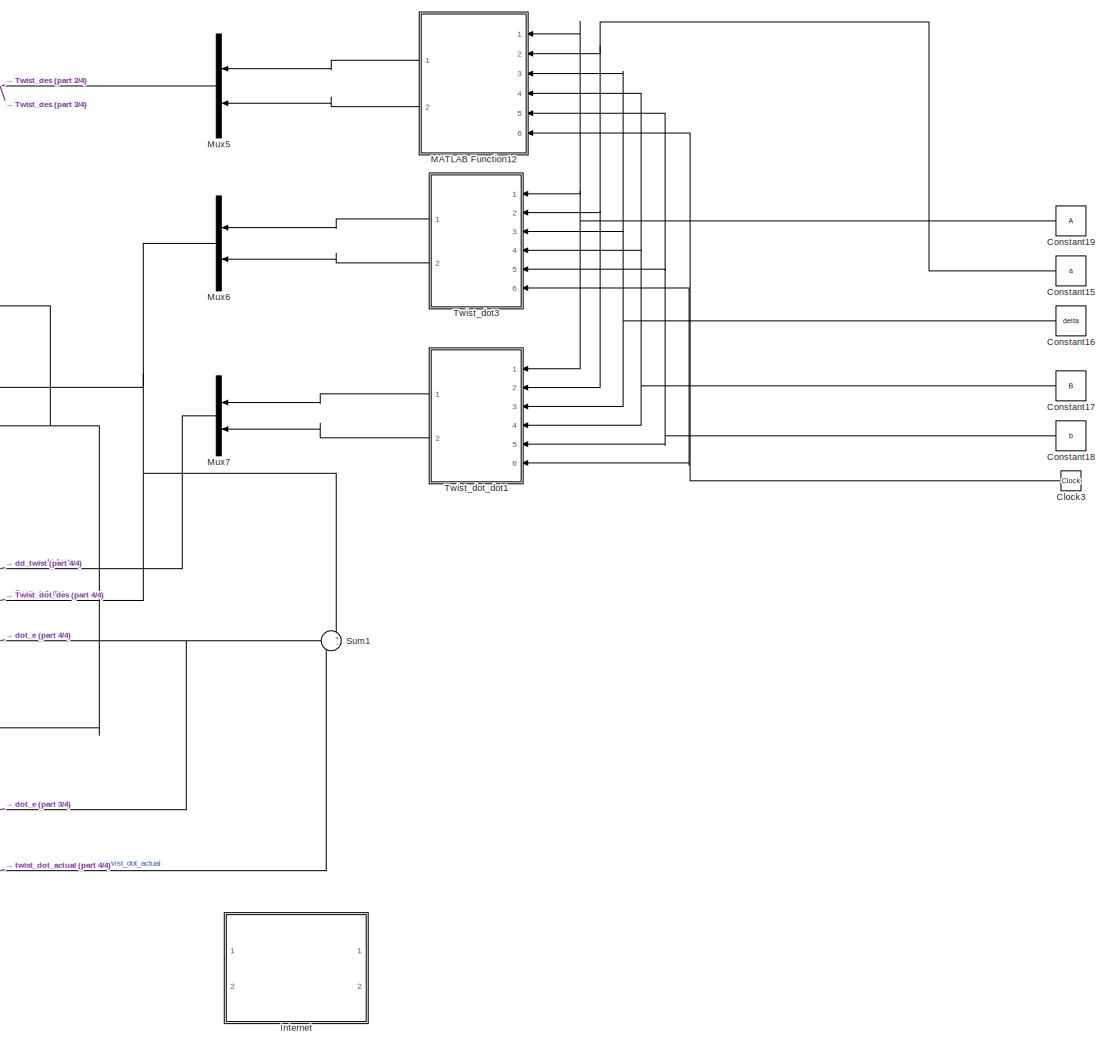
[diagram: root canvas - part 1/4, right side, full height]
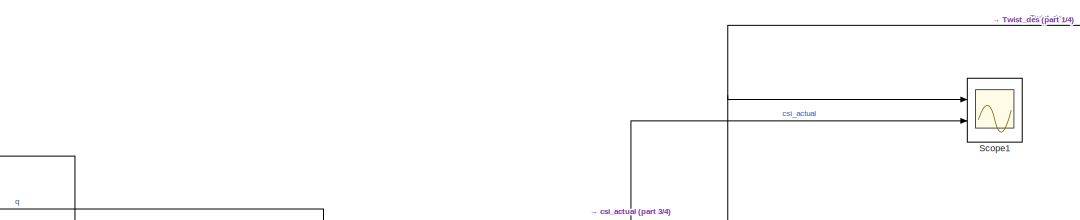
[diagram: root canvas - part 2/4, top center region]
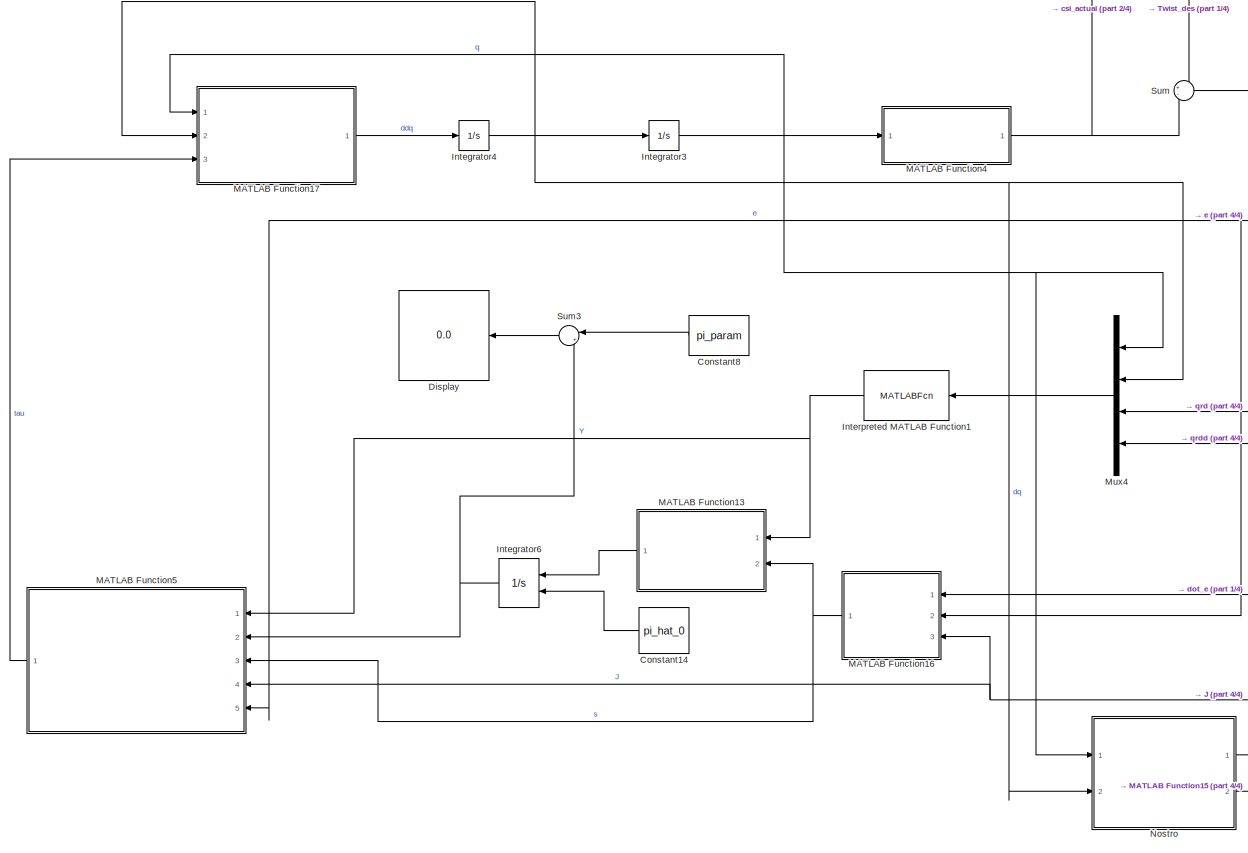
[diagram: root canvas - part 3/4, left side, full height]
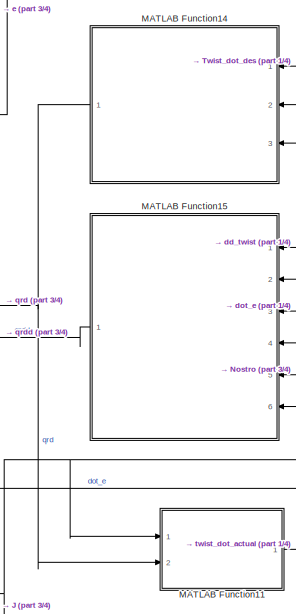
[diagram: root canvas - part 4/4, central region]
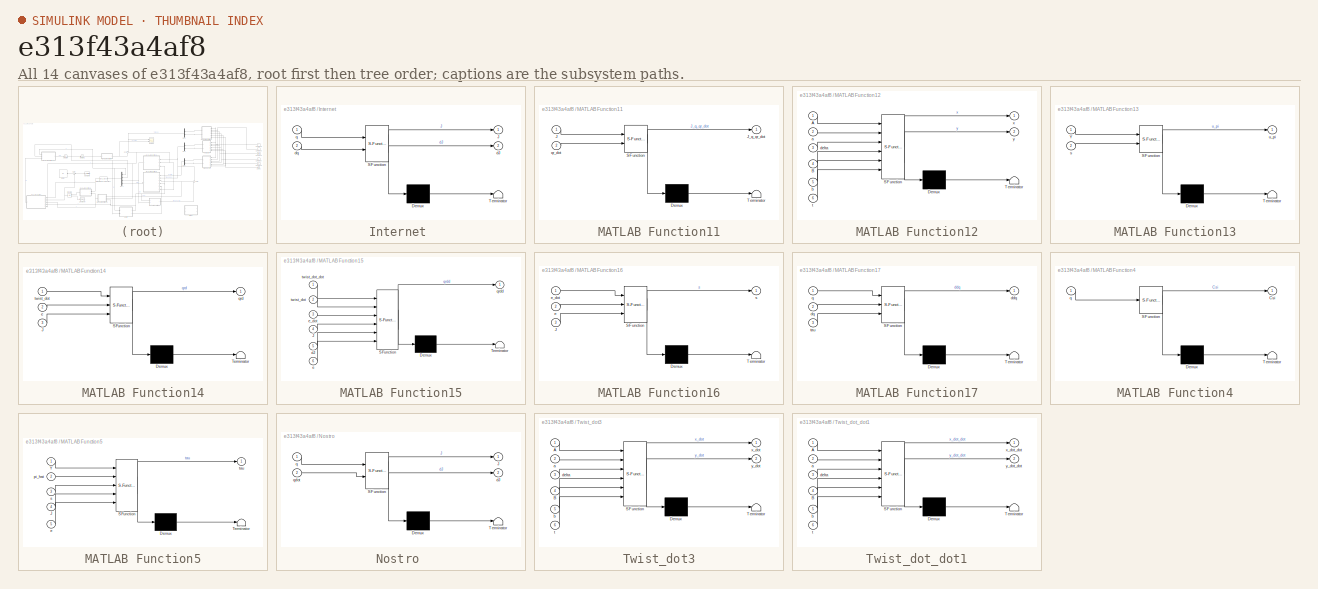
[diagram: thumbnail index - all 14 canvases of the model, root first then tree order]
MODEL slx_e313f43a4af8
KIND model
CONFIG AbsTol = auto
CONFIG EnableMultiTasking = off
CONFIG FixedStep = 1e-2
CONFIG MaxStep = auto
CONFIG MinStep = auto
CONFIG RelTol = 1e-3
CONFIG SampleTimeConstraint = Unconstrained
CONFIG Solver = VariableStepAuto
CONFIG SolverName = VariableStepAuto
CONFIG StartTime = 0.0
CONFIG StopTime = 20
BLOCK [Clock] Clock3
BLOCK [Constant] Constant14
  Value = pi_hat_0
  VectorParams1D = off
BLOCK [Constant] Constant15
  Value = a
BLOCK [Constant] Constant16
  Value = delta
BLOCK [Constant] Constant17
  Value = B
BLOCK [Constant] Constant18
  Value = b
BLOCK [Constant] Constant19
  Value = A
BLOCK [Constant] Constant8
  Value = pi_param
BLOCK [Display] Display
  Decimation = 1
  Ports = [1]
BLOCK [Integrator] Integrator3
  InitialCondition = [0.97,0.97]'
  Ports = [1, 1]
BLOCK [Integrator] Integrator4
  InitialCondition = [0.3,0.3]'
  Ports = [1, 1]
BLOCK [Integrator] Integrator6
  InitialCondition = pi_hat_0
  InitialConditionSource = external
  Ports = [2, 1]
BLOCK [SubSystem] Internet 
  Commented = on
  ErrorFcn = Stateflow.Translate.translate
  PermitHierarchicalResolution = ExplicitOnly
  Ports = [2, 2]
  RequestExecContextInheritance = off
  SFBlockType = MATLAB Function
  TreatAsAtomicUnit = on
BLOCK [Demux] Internet / Demux 
  Outputs = 1
  Ports = [1, 1]
BLOCK [S-Function] Internet / SFunction 
  EnableBusSupport = on
  FunctionName = sf_sfun
  PortCounts = [2 3]
  Ports = [2, 3]
  SFcnIsStateOwnerBlock = off
  SFunctionDeploymentMode = off
  Tag = Stateflow S-Function 24
BLOCK [Terminator] Internet / Terminator 
BLOCK [Outport] Internet /J
  IconDisplay = Port number
BLOCK [Outport] Internet /dJ
  IconDisplay = Port number
  Port = 2
BLOCK [Inport] Internet /dq
  IconDisplay = Port number
  Port = 2
BLOCK [Inport] Internet /q
  IconDisplay = Port number
BLOCK [MATLABFcn] Interpreted MATLAB Function1
  MATLABFcn = Regressor_DRR
  Output1D = off
  OutputDimensions = [2,4]
  Ports = [1, 1]
BLOCK [SubSystem] MATLAB Function11
  ErrorFcn = Stateflow.Translate.translate
  PermitHierarchicalResolution = ExplicitOnly
  Ports = [2, 1]
  RequestExecContextInheritance = off
  SFBlockType = MATLAB Function
  TreatAsAtomicUnit = on
BLOCK [Demux] MATLAB Function11/ Demux 
  Outputs = 1
  Ports = [1, 1]
BLOCK [S-Function] MATLAB Function11/ SFunction 
  EnableBusSupport = on
  FunctionName = sf_sfun
  PortCounts = [2 2]
  Ports = [2, 2]
  SFcnIsStateOwnerBlock = off
  SFunctionDeploymentMode = off
  Tag = Stateflow S-Function 3
BLOCK [Terminator] MATLAB Function11/ Terminator 
BLOCK [Inport] MATLAB Function11/J
  IconDisplay = Port number
BLOCK [Outport] MATLAB Function11/J_q_qr_dot
  IconDisplay = Port number
BLOCK [Inport] MATLAB Function11/qr_dot
  IconDisplay = Port number
  Port = 2
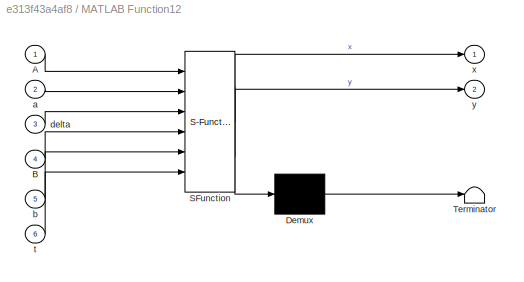
BLOCK [SubSystem] MATLAB Function12
  ErrorFcn = Stateflow.Translate.translate
  PermitHierarchicalResolution = ExplicitOnly
  Ports = [6, 2]
  RequestExecContextInheritance = off
  SFBlockType = MATLAB Function
  TreatAsAtomicUnit = on
BLOCK [Demux] MATLAB Function12/ Demux 
  Outputs = 1
  Ports = [1, 1]
BLOCK [S-Function] MATLAB Function12/ SFunction 
  EnableBusSupport = on
  FunctionName = sf_sfun
  PortCounts = [6 3]
  Ports = [6, 3]
  SFcnIsStateOwnerBlock = off
  SFunctionDeploymentMode = off
  Tag = Stateflow S-Function 8
BLOCK [Terminator] MATLAB Function12/ Terminator 
BLOCK [Inport] MATLAB Function12/A
  IconDisplay = Port number
BLOCK [Inport] MATLAB Function12/B
  IconDisplay = Port number
  Port = 4
BLOCK [Inport] MATLAB Function12/a
  IconDisplay = Port number
  Port = 2
BLOCK [Inport] MATLAB Function12/b
  IconDisplay = Port number
  Port = 5
BLOCK [Inport] MATLAB Function12/delta
  IconDisplay = Port number
  Port = 3
BLOCK [Inport] MATLAB Function12/t
  IconDisplay = Port number
  Port = 6
BLOCK [Outport] MATLAB Function12/x
  IconDisplay = Port number
BLOCK [Outport] MATLAB Function12/y
  IconDisplay = Port number
  Port = 2
BLOCK [SubSystem] MATLAB Function13
  ErrorFcn = Stateflow.Translate.translate
  PermitHierarchicalResolution = ExplicitOnly
  Ports = [2, 1]
  RequestExecContextInheritance = off
  SFBlockType = MATLAB Function
  TreatAsAtomicUnit = on
BLOCK [Demux] MATLAB Function13/ Demux 
  Outputs = 1
  Ports = [1, 1]
BLOCK [S-Function] MATLAB Function13/ SFunction 
  EnableBusSupport = on
  FunctionName = sf_sfun
  PortCounts = [2 2]
  Ports = [2, 2]
  SFcnIsStateOwnerBlock = off
  SFunctionDeploymentMode = off
  Tag = Stateflow S-Function 9
BLOCK [Terminator] MATLAB Function13/ Terminator 
BLOCK [Inport] MATLAB Function13/Y
  IconDisplay = Port number
BLOCK [Inport] MATLAB Function13/s
  IconDisplay = Port number
  Port = 2
BLOCK [Outport] MATLAB Function13/u_pi
  IconDisplay = Port number
BLOCK [SubSystem] MATLAB Function14
  ErrorFcn = Stateflow.Translate.translate
  PermitHierarchicalResolution = ExplicitOnly
  Ports = [3, 1]
  RequestExecContextInheritance = off
  SFBlockType = MATLAB Function
  TreatAsAtomicUnit = on
BLOCK [Demux] MATLAB Function14/ Demux 
  Outputs = 1
  Ports = [1, 1]
BLOCK [S-Function] MATLAB Function14/ SFunction 
  EnableBusSupport = on
  FunctionName = sf_sfun
  PortCounts = [3 2]
  Ports = [3, 2]
  SFcnIsStateOwnerBlock = off
  SFunctionDeploymentMode = off
  Tag = Stateflow S-Function 10
BLOCK [Terminator] MATLAB Function14/ Terminator 
BLOCK [Inport] MATLAB Function14/J
  IconDisplay = Port number
  Port = 3
BLOCK [Inport] MATLAB Function14/e
  IconDisplay = Port number
  Port = 2
BLOCK [Outport] MATLAB Function14/qrd
  IconDisplay = Port number
BLOCK [Inport] MATLAB Function14/twist_dot
  IconDisplay = Port number
BLOCK [SubSystem] MATLAB Function15
  ErrorFcn = Stateflow.Translate.translate
  PermitHierarchicalResolution = ExplicitOnly
  Ports = [6, 1]
  RequestExecContextInheritance = off
  SFBlockType = MATLAB Function
  TreatAsAtomicUnit = on
BLOCK [Demux] MATLAB Function15/ Demux 
  Outputs = 1
  Ports = [1, 1]
BLOCK [S-Function] MATLAB Function15/ SFunction 
  EnableBusSupport = on
  FunctionName = sf_sfun
  PortCounts = [6 2]
  Ports = [6, 2]
  SFcnIsStateOwnerBlock = off
  SFunctionDeploymentMode = off
  Tag = Stateflow S-Function 11
BLOCK [Terminator] MATLAB Function15/ Terminator 
BLOCK [Inport] MATLAB Function15/J
  IconDisplay = Port number
  Port = 4
BLOCK [Inport] MATLAB Function15/dJ
  IconDisplay = Port number
  Port = 5
BLOCK [Inport] MATLAB Function15/e
  IconDisplay = Port number
  Port = 6
BLOCK [Inport] MATLAB Function15/e_dot
  IconDisplay = Port number
  Port = 3
BLOCK [Outport] MATLAB Function15/qrdd
  IconDisplay = Port number
BLOCK [Inport] MATLAB Function15/twist_dot
  IconDisplay = Port number
  Port = 2
BLOCK [Inport] MATLAB Function15/twist_dot_dot
  IconDisplay = Port number
BLOCK [SubSystem] MATLAB Function16
  ErrorFcn = Stateflow.Translate.translate
  PermitHierarchicalResolution = ExplicitOnly
  Ports = [3, 1]
  RequestExecContextInheritance = off
  SFBlockType = MATLAB Function
  TreatAsAtomicUnit = on
BLOCK [Demux] MATLAB Function16/ Demux 
  Outputs = 1
  Ports = [1, 1]
BLOCK [S-Function] MATLAB Function16/ SFunction 
  EnableBusSupport = on
  FunctionName = sf_sfun
  PortCounts = [3 2]
  Ports = [3, 2]
  SFcnIsStateOwnerBlock = off
  SFunctionDeploymentMode = off
  Tag = Stateflow S-Function 18
BLOCK [Terminator] MATLAB Function16/ Terminator 
BLOCK [Inport] MATLAB Function16/J
  IconDisplay = Port number
  Port = 3
BLOCK [Inport] MATLAB Function16/e
  IconDisplay = Port number
  Port = 2
BLOCK [Inport] MATLAB Function16/e_dot
  IconDisplay = Port number
BLOCK [Outport] MATLAB Function16/s
  IconDisplay = Port number
BLOCK [SubSystem] MATLAB Function17
  ErrorFcn = Stateflow.Translate.translate
  PermitHierarchicalResolution = ExplicitOnly
  Ports = [3, 1]
  RequestExecContextInheritance = off
  SFBlockType = MATLAB Function
  TreatAsAtomicUnit = on
BLOCK [Demux] MATLAB Function17/ Demux 
  Outputs = 1
  Ports = [1, 1]
BLOCK [S-Function] MATLAB Function17/ SFunction 
  EnableBusSupport = on
  FunctionName = sf_sfun
  PortCounts = [3 2]
  Ports = [3, 2]
  SFcnIsStateOwnerBlock = off
  SFunctionDeploymentMode = off
  Tag = Stateflow S-Function 19
BLOCK [Terminator] MATLAB Function17/ Terminator 
BLOCK [Outport] MATLAB Function17/ddq
  IconDisplay = Port number
BLOCK [Inport] MATLAB Function17/dq
  IconDisplay = Port number
  Port = 2
BLOCK [Inport] MATLAB Function17/q
  IconDisplay = Port number
BLOCK [Inport] MATLAB Function17/tau
  IconDisplay = Port number
  Port = 3
BLOCK [SubSystem] MATLAB Function4
  ErrorFcn = Stateflow.Translate.translate
  PermitHierarchicalResolution = ExplicitOnly
  Ports = [1, 1]
  RequestExecContextInheritance = off
  SFBlockType = MATLAB Function
  TreatAsAtomicUnit = on
BLOCK [Demux] MATLAB Function4/ Demux 
  Outputs = 1
  Ports = [1, 1]
BLOCK [S-Function] MATLAB Function4/ SFunction 
  EnableBusSupport = on
  FunctionName = sf_sfun
  PortCounts = [1 2]
  Ports = [1, 2]
  SFcnIsStateOwnerBlock = off
  SFunctionDeploymentMode = off
  Tag = Stateflow S-Function 13
BLOCK [Terminator] MATLAB Function4/ Terminator 
BLOCK [Outport] MATLAB Function4/Csi
  IconDisplay = Port number
BLOCK [Inport] MATLAB Function4/q
  IconDisplay = Port number
BLOCK [SubSystem] MATLAB Function5
  ErrorFcn = Stateflow.Translate.translate
  PermitHierarchicalResolution = ExplicitOnly
  Ports = [5, 1]
  RequestExecContextInheritance = off
  SFBlockType = MATLAB Function
  TreatAsAtomicUnit = on
BLOCK [Demux] MATLAB Function5/ Demux 
  Outputs = 1
  Ports = [1, 1]
BLOCK [S-Function] MATLAB Function5/ SFunction 
  EnableBusSupport = on
  FunctionName = sf_sfun
  PortCounts = [5 2]
  Ports = [5, 2]
  SFcnIsStateOwnerBlock = off
  SFunctionDeploymentMode = off
  Tag = Stateflow S-Function 14
BLOCK [Terminator] MATLAB Function5/ Terminator 
BLOCK [Inport] MATLAB Function5/J
  IconDisplay = Port number
  Port = 4
BLOCK [Inport] MATLAB Function5/Y
  IconDisplay = Port number
BLOCK [Inport] MATLAB Function5/e
  IconDisplay = Port number
  Port = 5
BLOCK [Inport] MATLAB Function5/pi_hat
  IconDisplay = Port number
  Port = 2
BLOCK [Inport] MATLAB Function5/s
  IconDisplay = Port number
  Port = 3
BLOCK [Outport] MATLAB Function5/tau
  IconDisplay = Port number
BLOCK [Mux] Mux4
  DisplayOption = bar
  Ports = [4, 1]
BLOCK [Mux] Mux5
  DisplayOption = bar
  Inputs = 2
  Ports = [2, 1]
BLOCK [Mux] Mux6
  DisplayOption = bar
  Inputs = 2
  Ports = [2, 1]
BLOCK [Mux] Mux7
  DisplayOption = bar
  Inputs = 2
  Ports = [2, 1]
BLOCK [SubSystem] Nostro 
  ErrorFcn = Stateflow.Translate.translate
  PermitHierarchicalResolution = ExplicitOnly
  Ports = [2, 2]
  RequestExecContextInheritance = off
  SFBlockType = MATLAB Function
  TreatAsAtomicUnit = on
BLOCK [Demux] Nostro / Demux 
  Outputs = 1
  Ports = [1, 1]
BLOCK [S-Function] Nostro / SFunction 
  EnableBusSupport = on
  FunctionName = sf_sfun
  PortCounts = [2 3]
  Ports = [2, 3]
  SFcnIsStateOwnerBlock = off
  SFunctionDeploymentMode = off
  Tag = Stateflow S-Function 20
BLOCK [Terminator] Nostro / Terminator 
BLOCK [Outport] Nostro /J
  IconDisplay = Port number
BLOCK [Outport] Nostro /dJ
  IconDisplay = Port number
  Port = 2
BLOCK [Inport] Nostro /q
  IconDisplay = Port number
BLOCK [Inport] Nostro /qdot
  IconDisplay = Port number
  Port = 2
BLOCK [Scope] Scope1
  Floating = off
  NumInputPorts = 2
  Ports = [2]
  ScopeSpecificationString = Simulink.scopes.TimeScopeBlockCfg('CurrentConfiguration', extmgr.ConfigurationSet(extmgr.Configuration('Core','General UI',true),extmgr.Configuration('Core','Source UI',true),extmgr.Configuration('Sources','WiredSimulink',true,'DataLoggingVariableName','ScopeData1'),extmgr.Configuration('Visuals','Time Domain',true),extmgr.Configuration('Tools','Plot Navigation',true),extmgr.Configuration('Tools',...<+40ch>
BLOCK [Sum] Sum
  IconShape = round
  InputSameDT = off
  Inputs = +-
  OutDataTypeStr = Inherit: Inherit via internal rule
  Ports = [2, 1]
  SaturateOnIntegerOverflow = off
BLOCK [Sum] Sum1
  IconShape = round
  InputSameDT = off
  Inputs = +-
  OutDataTypeStr = Inherit: Inherit via internal rule
  Ports = [2, 1]
  SaturateOnIntegerOverflow = off
BLOCK [Sum] Sum3
  IconShape = round
  InputSameDT = off
  Inputs = |+-
  OutDataTypeStr = Inherit: Inherit via internal rule
  Ports = [2, 1]
  SaturateOnIntegerOverflow = off
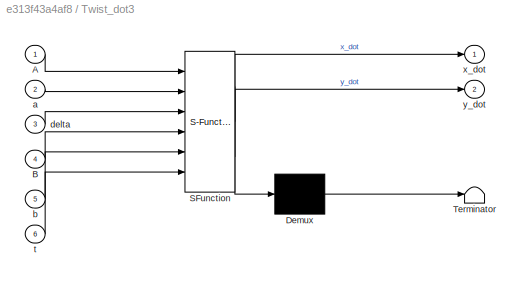
BLOCK [SubSystem] Twist_dot3
  ErrorFcn = Stateflow.Translate.translate
  PermitHierarchicalResolution = ExplicitOnly
  Ports = [6, 2]
  RequestExecContextInheritance = off
  SFBlockType = MATLAB Function
  TreatAsAtomicUnit = on
BLOCK [Demux] Twist_dot3/ Demux 
  Outputs = 1
  Ports = [1, 1]
BLOCK [S-Function] Twist_dot3/ SFunction 
  EnableBusSupport = on
  FunctionName = sf_sfun
  PortCounts = [6 3]
  Ports = [6, 3]
  SFcnIsStateOwnerBlock = off
  SFunctionDeploymentMode = off
  Tag = Stateflow S-Function 25
BLOCK [Terminator] Twist_dot3/ Terminator 
BLOCK [Inport] Twist_dot3/A
  IconDisplay = Port number
BLOCK [Inport] Twist_dot3/B
  IconDisplay = Port number
  Port = 4
BLOCK [Inport] Twist_dot3/a
  IconDisplay = Port number
  Port = 2
BLOCK [Inport] Twist_dot3/b
  IconDisplay = Port number
  Port = 5
BLOCK [Inport] Twist_dot3/delta
  IconDisplay = Port number
  Port = 3
BLOCK [Inport] Twist_dot3/t
  IconDisplay = Port number
  Port = 6
BLOCK [Outport] Twist_dot3/x_dot
  IconDisplay = Port number
BLOCK [Outport] Twist_dot3/y_dot
  IconDisplay = Port number
  Port = 2
BLOCK [SubSystem] Twist_dot_dot1
  ErrorFcn = Stateflow.Translate.translate
  PermitHierarchicalResolution = ExplicitOnly
  Ports = [6, 2]
  RequestExecContextInheritance = off
  SFBlockType = MATLAB Function
  TreatAsAtomicUnit = on
BLOCK [Demux] Twist_dot_dot1/ Demux 
  Outputs = 1
  Ports = [1, 1]
BLOCK [S-Function] Twist_dot_dot1/ SFunction 
  EnableBusSupport = on
  FunctionName = sf_sfun
  PortCounts = [6 3]
  Ports = [6, 3]
  SFcnIsStateOwnerBlock = off
  SFunctionDeploymentMode = off
  Tag = Stateflow S-Function 26
BLOCK [Terminator] Twist_dot_dot1/ Terminator 
BLOCK [Inport] Twist_dot_dot1/A
  IconDisplay = Port number
BLOCK [Inport] Twist_dot_dot1/B
  IconDisplay = Port number
  Port = 4
BLOCK [Inport] Twist_dot_dot1/a
  IconDisplay = Port number
  Port = 2
BLOCK [Inport] Twist_dot_dot1/b
  IconDisplay = Port number
  Port = 5
BLOCK [Inport] Twist_dot_dot1/delta
  IconDisplay = Port number
  Port = 3
BLOCK [Inport] Twist_dot_dot1/t
  IconDisplay = Port number
  Port = 6
BLOCK [Outport] Twist_dot_dot1/x_dot_dot
  IconDisplay = Port number
BLOCK [Outport] Twist_dot_dot1/y_dot_dot
  IconDisplay = Port number
  Port = 2
NET Clock3:1 -> MATLAB Function12:6, Twist_dot3:6, Twist_dot_dot1:6
LINE Constant14:1 -> Integrator6:2
NET Constant15:1 -> MATLAB Function12:2, Twist_dot3:2, Twist_dot_dot1:2
NET Constant16:1 -> MATLAB Function12:3, Twist_dot3:3, Twist_dot_dot1:3
NET Constant17:1 -> MATLAB Function12:4, Twist_dot3:4, Twist_dot_dot1:4
NET Constant18:1 -> MATLAB Function12:5, Twist_dot3:5, Twist_dot_dot1:5
NET Constant19:1 -> MATLAB Function12:1, Twist_dot3:1, Twist_dot_dot1:1
LINE Constant8:1 -> Sum3:1
NET Integrator3:1 -> MATLAB Function17:1, MATLAB Function4:1, Mux4:1, Nostro :1
NET Integrator4:1 -> Integrator3:1, MATLAB Function17:2, Mux4:2, Nostro :2
NET Integrator6:1 -> MATLAB Function5:2, Sum3:2
NET Interpreted MATLAB Function1:1 -> MATLAB Function13:1, MATLAB Function5:1
LINE MATLAB Function11:1 -> Sum1:2
LINE MATLAB Function12:1 -> Mux5:1
LINE MATLAB Function12:2 -> Mux5:2
LINE MATLAB Function13:1 -> Integrator6:1
NET MATLAB Function14:1 -> MATLAB Function11:2, Mux4:3
LINE MATLAB Function15:1 -> Mux4:4
NET MATLAB Function16:1 -> MATLAB Function13:2, MATLAB Function5:3
LINE MATLAB Function17:1 -> Integrator4:1
NET MATLAB Function4:1 -> Scope1:2, Sum:2
LINE MATLAB Function5:1 -> MATLAB Function17:3
LINE Mux4:1 -> Interpreted MATLAB Function1:1
NET Mux5:1 -> Scope1:1, Sum:1
NET Mux6:1 -> MATLAB Function14:1, MATLAB Function15:2, Sum1:1
LINE Mux7:1 -> MATLAB Function15:1
NET Nostro :1 -> MATLAB Function11:1, MATLAB Function14:3, MATLAB Function15:4, MATLAB Function16:3, MATLAB Function5:4
LINE Nostro :2 -> MATLAB Function15:5
NET Sum1:1 -> MATLAB Function15:3, MATLAB Function16:1
LINE Sum3:1 -> Display:1
NET Sum:1 -> MATLAB Function14:2, MATLAB Function15:6, MATLAB Function16:2, MATLAB Function5:5
LINE Twist_dot3:1 -> Mux6:1
LINE Twist_dot3:2 -> Mux6:2
LINE Twist_dot_dot1:1 -> Mux7:1
LINE Twist_dot_dot1:2 -> Mux7:2
note: NET lines group one-source signal fan-out (src -> all destinations, sorted); 1:1 wires keep LINE
CHART MATLAB Function11 states=1 transitions=1
  STATE_LABEL 'eML_blk_kernel()'
  STATE_LABEL 'SCRIPT:\nfunction J_q_qr_dot = fcn(J,qr_dot)\n\nJ_q_qr_dot = J*qr_dot;\n\nend'
CHART MATLAB Function12 states=1 transitions=1
  STATE_LABEL 'eML_blk_kernel()'
  STATE_LABEL 'SCRIPT:\nfunction [x,y] = Lissajous(A,a,delta,B,b,t)\n\n\nx = A*sin(a*t+delta);\ny = B*sin(b*t);\n\n\nend'
CHART MATLAB Function13 states=1 transitions=1
  STATE_LABEL 'eML_blk_kernel()'
  STATE_LABEL "SCRIPT:\nfunction u_pi = Update_Law(Y,s)\n\nR = 5*ones(2,4);\n\nu_pi = pinv(R).*(Y.')*s;\nend\n\n"
CHART MATLAB Function14 states=1 transitions=1
  STATE_LABEL 'eML_blk_kernel()'
  STATE_LABEL 'SCRIPT:\nfunction qrd = q_r_dot(twist_dot,e,J)\n\nlambda = 5 * eye(2);\nqrd = pinv(J)*(twist_dot + lambda * e);\n\nend\n\n'
CHART MATLAB Function15 states=1 transitions=1
  STATE_LABEL 'eML_blk_kernel()'
  STATE_LABEL 'SCRIPT:\nfunction qrdd = q_r_dot_dot(twist_dot_dot, twist_dot,e_dot,J,dJ,e)\n\nlambda = 5 * eye(2);\nqrdd = pinv(J)*(twist_dot_dot + lambda * e_dot) + pinv(dJ)*(twist_dot + lambda*e);\n% qrdd = twist_dot_dot - lambda*e_dot;\n\nend\n\n'
CHART MATLAB Function4 states=1 transitions=1
  STATE_LABEL 'eML_blk_kernel()'
  STATE_LABEL "SCRIPT:\nfunction Csi  = Direct_Kinematics_RR(q)\n\n%INPUT: q(1) = q1;\n%       q(2) = q2;\n\n%OUTPUT: px = position along x axis\n%        py = position along y axis\n\n%Link's lenght\n\nl1 = 1;\nl2 = 0.5;\n\npx = l1 * cos(q(1)) + l2 * cos(q(1)+q(2));\npy = l1 * sin(q(1)) + l2 * sin(q(1)+q(2));\n\nCsi = [px; py];\nend"
CHART MATLAB Function5 states=1 transitions=1
  STATE_LABEL 'eML_blk_kernel()'
  STATE_LABEL "SCRIPT:\nfunction tau = Back_Stepping_Control_Law(Y,pi_hat,s,J,e)\n\nKd = 10 * eye(2);\n\n\ntau = Y*pi_hat + Kd*s + (J.')*e;\n\nend"
CHART MATLAB Function16 states=1 transitions=1
  STATE_LABEL 'eML_blk_kernel()'
  STATE_LABEL 'SCRIPT:\nfunction s = fcn(e_dot,e,J)\n\nlamda = 5*eye(2);\n\ns = pinv(J)*(e_dot + lamda*e);\n\nend\n'
CHART MATLAB Function17 states=1 transitions=1
  STATE_LABEL 'eML_blk_kernel()'
  STATE_LABEL 'SCRIPT:\nfunction ddq = RR_Dynamics(q,dq,tau)\n\n% Masses\nm1 = 0.5;\nm2 = 0.5;\n%length of the links\na1 = 1;\na2 = 0.5;\n%Position of the center of mass\nl1 = 0.5;\nl2 = 0.25;\n\nr1 = m1*a1*(a1-l1); %pi_primoordine_numero del link\nr2 = m2*a2*(a2-l2);\n\n% Moment Second Order\nI1 = (m1*r1^2)/12;\nI2 = (m2*r2^2)/12;\n\n%Inertia matrix \nb11 = I1 + m1*l1^2 + I2 + m2*(a1^2 +l2^2 + 2*a1*l2*cos(q(2)));\nb12 = I2 + m2*(l2^...<+236ch>'
CHART Nostro
 states=1 transitions=1
  STATE_LABEL 'eML_blk_kernel()'
  STATE_LABEL 'SCRIPT:\nfunction [J,dJ] = Jacobian(q,qdot)\n\nl1=1;\nl2=0.5;\n\nJ = [-l1*sin(q(1))-l2*sin(q(1)+q(2)), -l2*sin(q(1)+q(2));\n    l1*cos(q(1))+l2*cos(q(1)+q(2)), l2*cos(q(1)+q(2))];\n\ndJ_11 = -l1*cos(q(1))*qdot(1) - l2*cos(q(1)+q(2))*(qdot(1)+qdot(2));\ndJ_12 = -l2*cos(q(1)+q(2))*(qdot(1)+qdot(2));\ndJ_21 = -l1*sin(q(1))*qdot(1)-l2*sin(q(1)+q(2))*(qdot(1)+qdot(2));\ndJ_22 = -l2*sin(q(1)+q(2))*(qdot(1)+qdot(2))...<+48ch>'
CHART Internet
 states=1 transitions=1
  STATE_LABEL 'eML_blk_kernel()'
  STATE_LABEL 'SCRIPT:\nfunction [J,dJ] = Jacobian(q,dq)\n\n%v = J(q) * dq\n\n%length of the links\nl1 = 0.5;\nl2 = 0.5;\n%Position of the center of mass\na1 = 1;\na2 = 1;\n\nJ = [-l1*sin(q(1)), 0, -a1*sin(q(1))-l2*sin(q(1)+q(2)), -l2*sin(q(1)+q(2));\n    l1*cos(q(1)), 0, a1*cos(q(1))+l2*cos(q(1)+q(2)), l2*cos(q(1)+q(2))];\n\n\ndJ = zeros(2,2);\n\ndJ_11 = -l1*cos(q(1))*dq(1);\ndJ_12 = 0;\ndJ_13 = -a1*cos(q(1))*dq(1)-l2*cos(q(1)+q(2...<+278ch>'
CHART Twist_dot3 states=1 transitions=1
  STATE_LABEL 'eML_blk_kernel()'
  STATE_LABEL 'SCRIPT:\nfunction [x_dot,y_dot] = Lissajous(A,a,delta,B,b,t)\n\n\n% x = A*sin(a*t+delta);\n% y = B*sin(b*t);\n\nx_dot = A * cos(a*t + delta) * a;\ny_dot = B * cos(b*t) * b;\n\n\nend'
CHART Twist_dot_dot1 states=1 transitions=1
  STATE_LABEL 'eML_blk_kernel()'
  STATE_LABEL 'SCRIPT:\nfunction [x_dot_dot,y_dot_dot] = Lissajous(A,a,delta,B,b,t)\n\n\n% x = A*sin(a*t+delta);\n% y = B*sin(b*t);\n\nx_dot_dot = -A * sin(a*t + delta) * a^2;\ny_dot_dot = -B * sin(b*t) * b^2;\n\n\nend'
